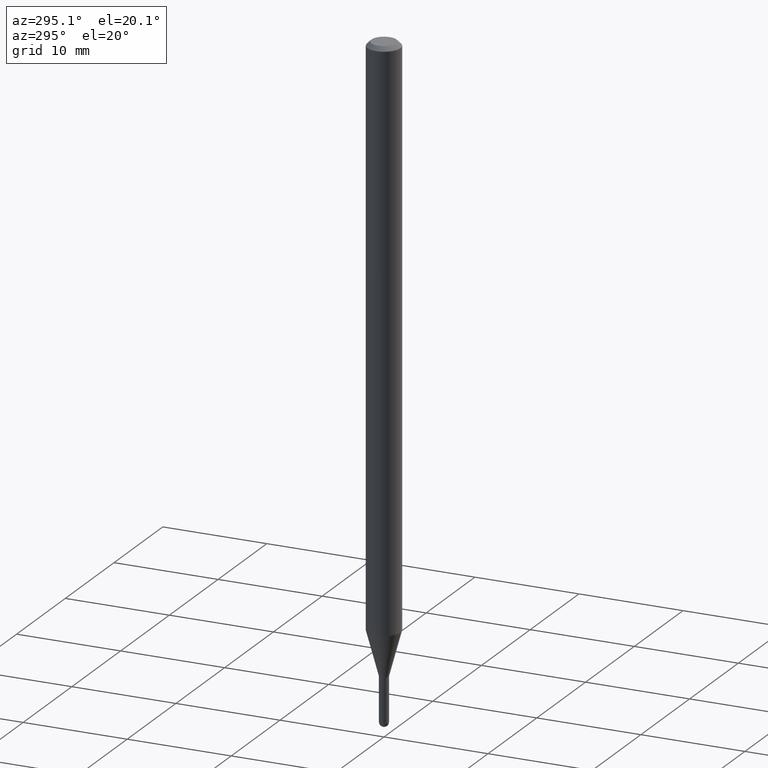
[diagram: clean part render]
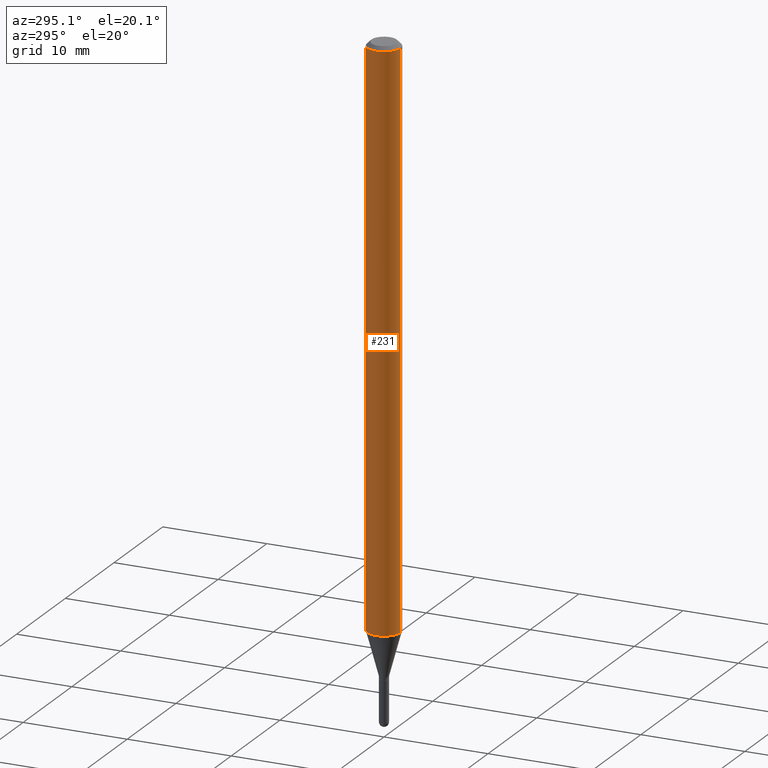
[diagram: same view with one face highlighted and labeled with its STEP entity id]
A machine part, auxiliary view. The second image highlights one B-rep face of the part: STEP entity #231.
In plain terms, the highlighted cylindrical surface (edge-blend (fillet) strip) has radius 1.5875 mm, axis along (-0, 0, 1).
Its self-contained STEP definition (entity closure, byte-faithful):
#9 = VERTEX_POINT ( 'NONE', #303 ) ;
#10 = LINE ( 'NONE', #284, #259 ) ;
#22 = CARTESIAN_POINT ( 'NONE',  ( 3.668248587796234838E-31, -5.237157023643405199E-17, -0.01500000000000000812 ) ) ;
#24 = DIRECTION ( 'NONE',  ( -2.445499058530821695E-29, 3.491438015762267766E-15, 1.000000000000000000 ) ) ;
#34 = DIRECTION ( 'NONE',  ( -6.982962677686265922E-15, -1.000000000000000000, 3.491438015762267766E-15 ) ) ;
#42 = ORIENTED_EDGE ( 'NONE', *, *, #422, .F. ) ;
#46 = EDGE_CURVE ( 'NONE', #196, #9, #339, .T. ) ;
#52 = ORIENTED_EDGE ( 'NONE', *, *, #66, .T. ) ;
#66 = EDGE_CURVE ( 'NONE', #248, #381, #219, .T. ) ;
#80 = CARTESIAN_POINT ( 'NONE',  ( 4.440892098501148782E-16, 0.06249999999999247824, -2.147057713659400235 ) ) ;
#83 = AXIS2_PLACEMENT_3D ( 'NONE', #22, #180, #108 ) ;
#108 = DIRECTION ( 'NONE',  ( -6.982962677686265922E-15, -1.000000000000000000, 3.483106191921935554E-15 ) ) ;
#155 = FACE_OUTER_BOUND ( 'NONE', #166, .T. ) ;
#156 = AXIS2_PLACEMENT_3D ( 'NONE', #385, #427, #34 ) ;
#166 = EDGE_LOOP ( 'NONE', ( #42, #52, #446, #331 ) ) ;
#172 = CARTESIAN_POINT ( 'NONE',  ( -4.364351673553391609E-16, -0.06250000000000749401, -2.147057713659399347 ) ) ;
#180 = DIRECTION ( 'NONE',  ( -2.445499058530821695E-29, 3.491438015762267766E-15, 1.000000000000000000 ) ) ;
#181 = CARTESIAN_POINT ( 'NONE',  ( 4.440892098500625669E-16, 0.06250000000000000000, -2.182148759851417354E-16 ) ) ;
#194 = CARTESIAN_POINT ( 'NONE',  ( 4.440892098501154699E-16, 0.06249999999999995143, -0.01500000000000022669 ) ) ;
#196 = VERTEX_POINT ( 'NONE', #194 ) ;
#219 = CIRCLE ( 'NONE', #424, 0.06250000000000000000 ) ;
#231 = ADVANCED_FACE ( 'NONE', ( #155 ), #390, .T. ) ;
#248 = VERTEX_POINT ( 'NONE', #80 ) ;
#259 = VECTOR ( 'NONE', #333, 39.37007874015748143 ) ;
#266 = VECTOR ( 'NONE', #24, 39.37007874015748143 ) ;
#272 = EDGE_CURVE ( 'NONE', #381, #9, #10, .T. ) ;
#284 = CARTESIAN_POINT ( 'NONE',  ( -4.364351673553916201E-16, -0.06250000000000000000, 2.182148759851417354E-16 ) ) ;
#303 = CARTESIAN_POINT ( 'NONE',  ( -4.364351673553912750E-16, -0.06250000000000005551, -0.01499999999999979128 ) ) ;
#308 = DIRECTION ( 'NONE',  ( -6.982962677686265922E-15, -1.000000000000000000, 4.370956789862821150E-15 ) ) ;
#331 = ORIENTED_EDGE ( 'NONE', *, *, #46, .F. ) ;
#333 = DIRECTION ( 'NONE',  ( -2.445499058530821695E-29, 3.491438015762267766E-15, 1.000000000000000000 ) ) ;
#339 = CIRCLE ( 'NONE', #83, 0.06250000000000000000 ) ;
#375 = LINE ( 'NONE', #181, #266 ) ;
#381 = VERTEX_POINT ( 'NONE', #172 ) ;
#385 = CARTESIAN_POINT ( 'NONE',  ( 0.000000000000000000, 0.000000000000000000, 0.000000000000000000 ) ) ;
#390 = CYLINDRICAL_SURFACE ( 'NONE', #156, 0.06250000000000000000 ) ;
#417 = CARTESIAN_POINT ( 'NONE',  ( 5.250627617365400898E-29, -7.496318923506046239E-15, -2.147057713659399791 ) ) ;
#422 = EDGE_CURVE ( 'NONE', #248, #196, #375, .T. ) ;
#424 = AXIS2_PLACEMENT_3D ( 'NONE', #417, #453, #308 ) ;
#427 = DIRECTION ( 'NONE',  ( -2.445499058530821695E-29, 3.491438015762267766E-15, 1.000000000000000000 ) ) ;
#446 = ORIENTED_EDGE ( 'NONE', *, *, #272, .T. ) ;
#453 = DIRECTION ( 'NONE',  ( -2.445499058530821695E-29, 3.491438015762267766E-15, 1.000000000000000000 ) ) ;